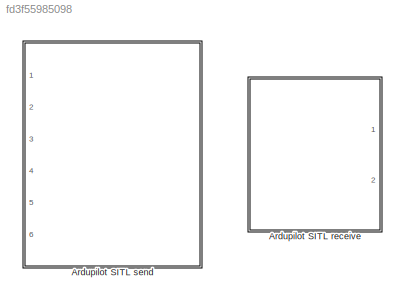
MODEL slx_fd3f55985098
KIND model
CONFIG AbsTol = auto
CONFIG EnableMultiTasking = off
CONFIG FixedStep = auto
CONFIG MaxStep = auto
CONFIG MinStep = auto
CONFIG RelTol = 1e-3
CONFIG SampleTimeConstraint = Unconstrained
CONFIG Solver = VariableStepAuto
CONFIG SolverName = VariableStepAuto
CONFIG StartTime = 0.0
CONFIG StopTime = 10.0
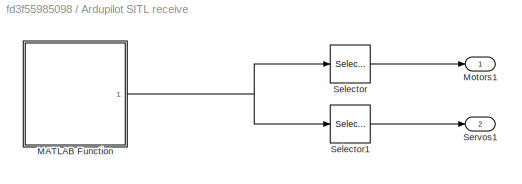
BLOCK [SubSystem] Ardupilot SITL receive
  Ports = [0, 2]
  RequestExecContextInheritance = off
  Variant = off
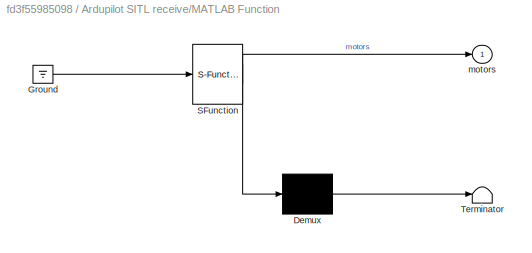
BLOCK [SubSystem] Ardupilot SITL receive/MATLAB Function
  ErrorFcn = Stateflow.Translate.translate
  PermitHierarchicalResolution = ExplicitOnly
  Ports = [0, 1]
  RequestExecContextInheritance = off
  SFBlockType = MATLAB Function
  SystemSampleTime = 0.02
  TreatAsAtomicUnit = on
  Variant = off
BLOCK [Demux] Ardupilot SITL receive/MATLAB Function/ Demux 
  Outputs = 1
  Ports = [1, 1]
BLOCK [Ground] Ardupilot SITL receive/MATLAB Function/ Ground 
BLOCK [S-Function] Ardupilot SITL receive/MATLAB Function/ SFunction 
  EnableBusSupport = on
  FunctionName = sf_sfun
  PortCounts = [1 2]
  Ports = [1, 2]
  SFcnIsStateOwnerBlock = off
  SFunctionDeploymentMode = off
  Tag = Stateflow S-Function blocks 3
BLOCK [Terminator] Ardupilot SITL receive/MATLAB Function/ Terminator 
BLOCK [Outport] Ardupilot SITL receive/MATLAB Function/motors
  IconDisplay = Port number
BLOCK [Outport] Ardupilot SITL receive/Motors1
  IconDisplay = Port number
BLOCK [Selector] Ardupilot SITL receive/Selector
  IndexOptions = Index vector (dialog)
  Indices = sitl.output.motors
  InputPortWidth = 16
  OutputSizes = 1
  Ports = [1, 1]
BLOCK [Selector] Ardupilot SITL receive/Selector1
  IndexOptions = Index vector (dialog)
  Indices = sitl.output.servos
  InputPortWidth = 16
  OutputSizes = 1
  Ports = [1, 1]
BLOCK [Outport] Ardupilot SITL receive/Servos1
  IconDisplay = Port number
  Port = 2
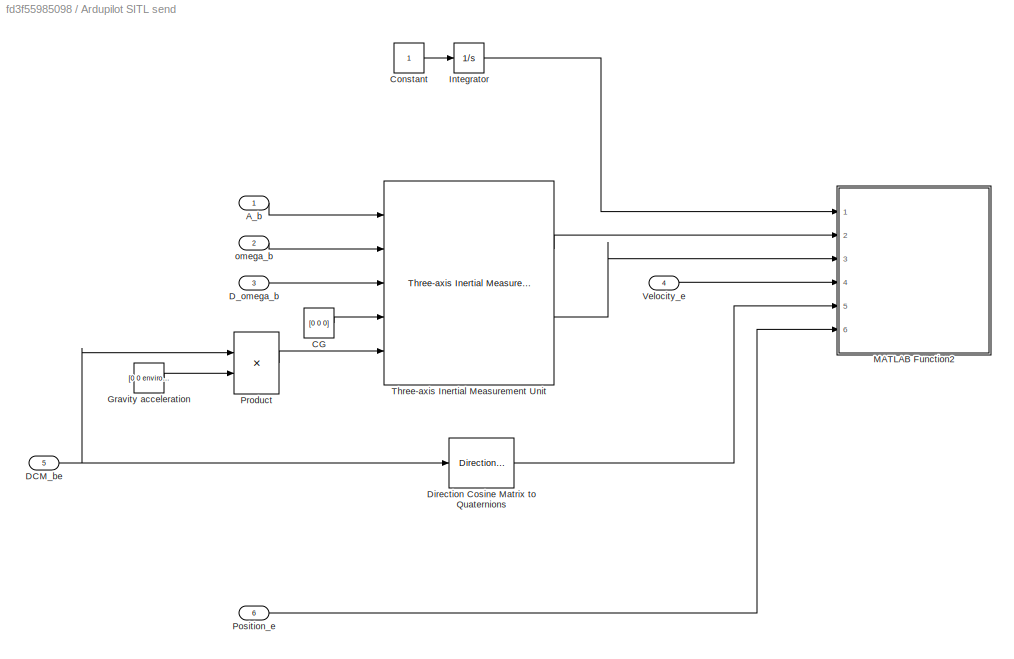
BLOCK [SubSystem] Ardupilot SITL send
  Ports = [6]
  RequestExecContextInheritance = off
  Variant = off
BLOCK [Inport] Ardupilot SITL send/A_b
  IconDisplay = Port number
BLOCK [Constant] Ardupilot SITL send/CG
  Value = [0 0 0]
BLOCK [Constant] Ardupilot SITL send/Constant
BLOCK [Inport] Ardupilot SITL send/DCM_be 
  IconDisplay = Port number
  Port = 5
BLOCK [Inport] Ardupilot SITL send/D_omega_b
  IconDisplay = Port number
  Port = 3
BLOCK [Reference] Ardupilot SITL send/Direction Cosine Matrix to Quaternions  REF=sharedtransform/Direction Cosine Matrix 
to Quaternions
  Ports = [1, 1]
  SourceBlock = sharedtransform/Direction Cosine Matrix \nto Quaternions
  SourceProductBaseCode = AE
  SourceProductName = Aerospace Blockset
  SourceType = DCM2Quaternion
BLOCK [Constant] Ardupilot SITL send/Gravity acceleration
  Value = [0 0 environment.gravityAcc]'
BLOCK [Integrator] Ardupilot SITL send/Integrator
  Ports = [1, 1]
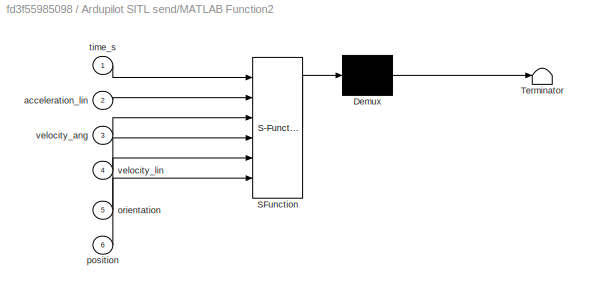
BLOCK [SubSystem] Ardupilot SITL send/MATLAB Function2
  ErrorFcn = Stateflow.Translate.translate
  PermitHierarchicalResolution = ExplicitOnly
  Ports = [6]
  RequestExecContextInheritance = off
  SFBlockType = MATLAB Function
  SystemSampleTime = 0.002
  TreatAsAtomicUnit = on
  TreatAsGroupedWhenPropagatingVariantConditions = off
  Variant = off
BLOCK [Demux] Ardupilot SITL send/MATLAB Function2/ Demux 
  Outputs = 1
  Ports = [1, 1]
BLOCK [S-Function] Ardupilot SITL send/MATLAB Function2/ SFunction 
  EnableBusSupport = on
  FunctionName = sf_sfun
  PortCounts = [6 1]
  Ports = [6, 1]
  SFcnIsStateOwnerBlock = off
  SFunctionDeploymentMode = off
  Tag = Stateflow S-Function blocks 5
BLOCK [Terminator] Ardupilot SITL send/MATLAB Function2/ Terminator 
BLOCK [Inport] Ardupilot SITL send/MATLAB Function2/acceleration_lin
  IconDisplay = Port number
  Port = 2
BLOCK [Inport] Ardupilot SITL send/MATLAB Function2/orientation
  IconDisplay = Port number
  Port = 5
BLOCK [Inport] Ardupilot SITL send/MATLAB Function2/position
  IconDisplay = Port number
  Port = 6
BLOCK [Inport] Ardupilot SITL send/MATLAB Function2/time_s
  IconDisplay = Port number
BLOCK [Inport] Ardupilot SITL send/MATLAB Function2/velocity_ang
  IconDisplay = Port number
  Port = 3
BLOCK [Inport] Ardupilot SITL send/MATLAB Function2/velocity_lin
  IconDisplay = Port number
  Port = 4
BLOCK [Inport] Ardupilot SITL send/Position_e
  IconDisplay = Port number
  Port = 6
BLOCK [Product] Ardupilot SITL send/Product
  InputSameDT = off
  Multiplication = Matrix(*)
  OutDataTypeStr = Inherit: Inherit via internal rule
  Ports = [2, 1]
  RndMeth = Floor
  SaturateOnIntegerOverflow = off
BLOCK [Reference] Ardupilot SITL send/Three-axis Inertial Measurement Unit  REF=aerolibnav/Three-axis Inertial
Measurement Unit
  Ports = [5, 2]
  SourceBlock = aerolibnav/Three-axis Inertial\nMeasurement Unit
  SourceProductBaseCode = AE
  SourceProductName = Aerospace Blockset
  SourceType = Three-axis Inertial Measurement Unit
BLOCK [Inport] Ardupilot SITL send/Velocity_e
  IconDisplay = Port number
  Port = 4
BLOCK [Inport] Ardupilot SITL send/omega_b
  IconDisplay = Port number
  Port = 2
NET Ardupilot SITL receive/MATLAB Function:1 -> Ardupilot SITL receive/Selector1:1, Ardupilot SITL receive/Selector:1
LINE Ardupilot SITL receive/Selector1:1 -> Ardupilot SITL receive/Servos1:1
LINE Ardupilot SITL receive/Selector:1 -> Ardupilot SITL receive/Motors1:1
LINE Ardupilot SITL send/A_b:1 -> Ardupilot SITL send/Three-axis Inertial Measurement Unit:1
LINE Ardupilot SITL send/CG:1 -> Ardupilot SITL send/Three-axis Inertial Measurement Unit:4
LINE Ardupilot SITL send/Constant:1 -> Ardupilot SITL send/Integrator:1
NET Ardupilot SITL send/DCM_be :1 -> Ardupilot SITL send/Direction Cosine Matrix to Quaternions:1, Ardupilot SITL send/Product:1
LINE Ardupilot SITL send/D_omega_b:1 -> Ardupilot SITL send/Three-axis Inertial Measurement Unit:3
LINE Ardupilot SITL send/Direction Cosine Matrix to Quaternions:1 -> Ardupilot SITL send/MATLAB Function2:5
LINE Ardupilot SITL send/Gravity acceleration:1 -> Ardupilot SITL send/Product:2
LINE Ardupilot SITL send/Integrator:1 -> Ardupilot SITL send/MATLAB Function2:1
LINE Ardupilot SITL send/Position_e:1 -> Ardupilot SITL send/MATLAB Function2:6
LINE Ardupilot SITL send/Product:1 -> Ardupilot SITL send/Three-axis Inertial Measurement Unit:5
LINE Ardupilot SITL send/Three-axis Inertial Measurement Unit:1 -> Ardupilot SITL send/MATLAB Function2:2
LINE Ardupilot SITL send/Three-axis Inertial Measurement Unit:2 -> Ardupilot SITL send/MATLAB Function2:3
LINE Ardupilot SITL send/Velocity_e:1 -> Ardupilot SITL send/MATLAB Function2:4
LINE Ardupilot SITL send/omega_b:1 -> Ardupilot SITL send/Three-axis Inertial Measurement Unit:2
note: NET lines group one-source signal fan-out (src -> all destinations, sorted); 1:1 wires keep LINE
CHART Ardupilot SITL receive/MATLAB Function states=1 transitions=1
  STATE_LABEL 'eML_blk_kernel()'
  STATE_LABEL "SCRIPT:\nfunction motors = fcn()\nmotors = zeros(16 ,1);\ncoder.extrinsic('-sync:on','simReceive');\nmotors = simReceive();\nend"
CHART Ardupilot SITL send/MATLAB Function2 states=1 transitions=1
  STATE_LABEL 'eML_blk_kernel()'
  STATE_LABEL "SCRIPT:\nfunction fcn(time_s, acceleration_lin, velocity_ang, velocity_lin, orientation, position)\ncoder.extrinsic('-sync:on','simSend');\nsimSend(time_s, velocity_ang, velocity_lin, acceleration_lin, orientation, position);"
